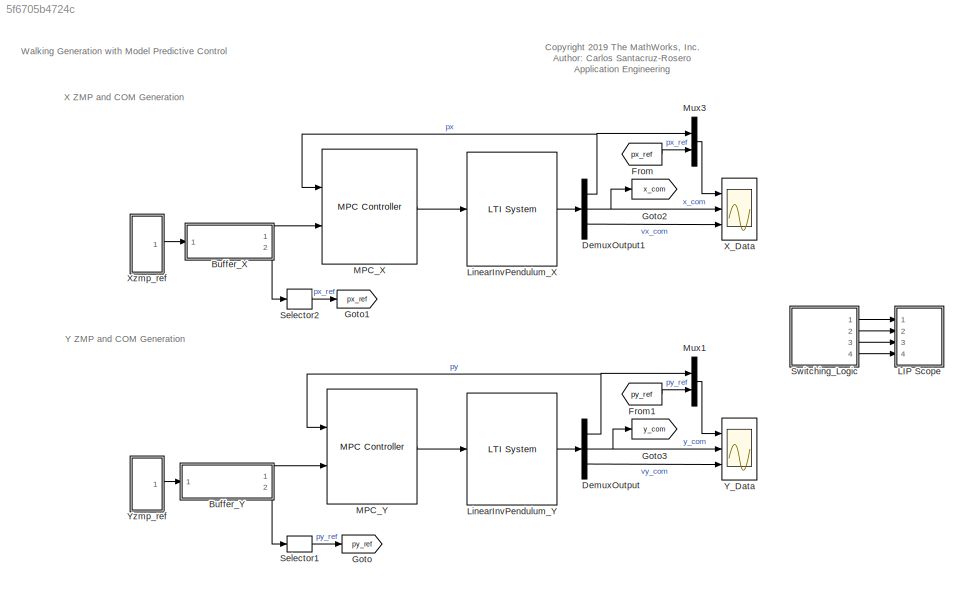
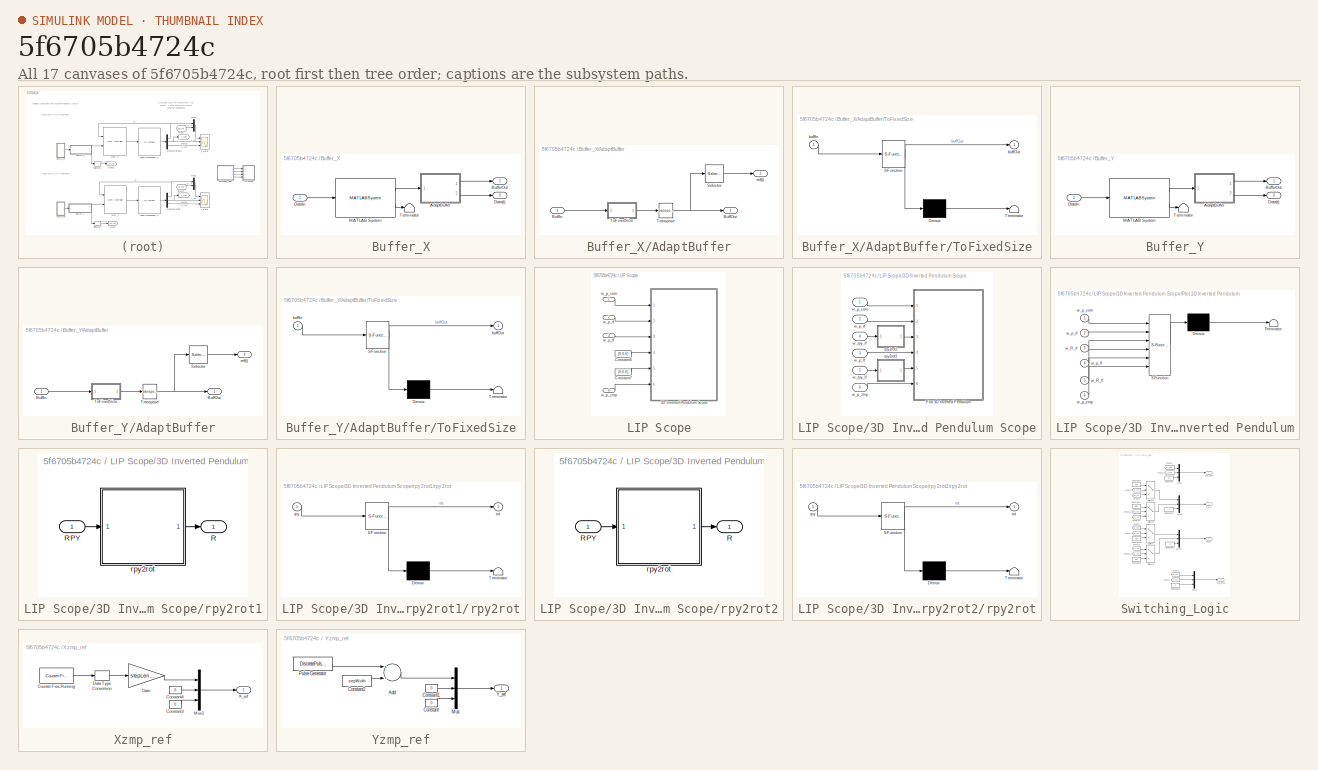
[diagram: thumbnail index - all 17 canvases of the model, root first then tree order]
MODEL slx_5f6705b4724c
KIND model
CONFIG AbsTol = auto
CONFIG EnableMultiTasking = off
CONFIG FixedStep = auto
CONFIG MaxStep = auto
CONFIG MinStep = auto
CONFIG RelTol = 1e-3
CONFIG SampleTimeConstraint = Unconstrained
CONFIG Solver = VariableStepAuto
CONFIG SolverName = VariableStepAuto
CONFIG StartTime = 0.0
CONFIG StopTime = 10.0
BLOCK [SubSystem] Buffer_X
  Ports = [1, 2]
  RequestExecContextInheritance = off
BLOCK [SubSystem] Buffer_X/AdaptBuffer
  Ports = [1, 2]
  RequestExecContextInheritance = off
BLOCK [Inport] Buffer_X/AdaptBuffer/BuffIn
  IconDisplay = Port number
BLOCK [Outport] Buffer_X/AdaptBuffer/BuffOut
  IconDisplay = Port number
BLOCK [Selector] Buffer_X/AdaptBuffer/Selector
  IndexOptions = Index vector (dialog),Select all
  Indices = [1],1
  InputPortWidth = 3
  NumberOfDimensions = 2
  OutputSizes = 1,1
  Ports = [1, 1]
BLOCK [SubSystem] Buffer_X/AdaptBuffer/ToFixedSize
  ErrorFcn = Stateflow.Translate.translate
  PermitHierarchicalResolution = ExplicitOnly
  Ports = [1, 1]
  RequestExecContextInheritance = off
  SFBlockType = MATLAB Function
  TreatAsAtomicUnit = on
BLOCK [Demux] Buffer_X/AdaptBuffer/ToFixedSize/ Demux 
  Outputs = 1
  Ports = [1, 1]
BLOCK [S-Function] Buffer_X/AdaptBuffer/ToFixedSize/ SFunction 
  EnableBusSupport = off
  FunctionName = sf_sfun
  Parameters = numStates,predictionHorizon
  PortCounts = [1 2]
  Ports = [1, 2]
  SFcnIsStateOwnerBlock = off
  SFunctionDeploymentMode = off
  Tag = Stateflow S-Function 1
BLOCK [Terminator] Buffer_X/AdaptBuffer/ToFixedSize/ Terminator 
BLOCK [Inport] Buffer_X/AdaptBuffer/ToFixedSize/buffIn
  IconDisplay = Port number
BLOCK [Outport] Buffer_X/AdaptBuffer/ToFixedSize/buffOut
  IconDisplay = Port number
BLOCK [Math] Buffer_X/AdaptBuffer/Transpose
  Operator = transpose
  Ports = [1, 1]
BLOCK [Outport] Buffer_X/AdaptBuffer/ref(t)
  IconDisplay = Port number
  Port = 2
BLOCK [Outport] Buffer_X/BufferOut
  IconDisplay = Port number
BLOCK [Outport] Buffer_X/Data(t)
  IconDisplay = Port number
  Port = 2
BLOCK [Inport] Buffer_X/DataIn
  IconDisplay = Port number
BLOCK [MATLABSystem] Buffer_X/MATLAB System
  BufferStartupFillupData = zeros(numOutputs,predictionHorizon)
  Capacity = predictionHorizon
  FillBufferAtStartup = on
  MaskDisplay = disp('FIFOBuffer');\nport_label('input',1,'dataIn');\nport_label('output',1,'buffer');\nport_label('output',2,'isFull');
  MaskType = FIFOBuffer
  NumStates = numOutputs
  Ports = [1, 2]
  SampleTime = Ts
  SimulateUsing = Code generation
  System = FIFOBuffer
BLOCK [Terminator] Buffer_X/Terminator
BLOCK [SubSystem] Buffer_Y
  Ports = [1, 2]
  RequestExecContextInheritance = off
BLOCK [SubSystem] Buffer_Y/AdaptBuffer
  Ports = [1, 2]
  RequestExecContextInheritance = off
BLOCK [Inport] Buffer_Y/AdaptBuffer/BuffIn
  IconDisplay = Port number
BLOCK [Outport] Buffer_Y/AdaptBuffer/BuffOut
  IconDisplay = Port number
BLOCK [Selector] Buffer_Y/AdaptBuffer/Selector
  IndexOptions = Index vector (dialog),Select all
  Indices = [1],1
  InputPortWidth = 3
  NumberOfDimensions = 2
  OutputSizes = 1,1
  Ports = [1, 1]
BLOCK [SubSystem] Buffer_Y/AdaptBuffer/ToFixedSize
  ErrorFcn = Stateflow.Translate.translate
  PermitHierarchicalResolution = ExplicitOnly
  Ports = [1, 1]
  RequestExecContextInheritance = off
  SFBlockType = MATLAB Function
  TreatAsAtomicUnit = on
BLOCK [Demux] Buffer_Y/AdaptBuffer/ToFixedSize/ Demux 
  Outputs = 1
  Ports = [1, 1]
BLOCK [S-Function] Buffer_Y/AdaptBuffer/ToFixedSize/ SFunction 
  EnableBusSupport = off
  FunctionName = sf_sfun
  Parameters = numStates,predictionHorizon
  PortCounts = [1 2]
  Ports = [1, 2]
  SFcnIsStateOwnerBlock = off
  SFunctionDeploymentMode = off
  Tag = Stateflow S-Function 2
BLOCK [Terminator] Buffer_Y/AdaptBuffer/ToFixedSize/ Terminator 
BLOCK [Inport] Buffer_Y/AdaptBuffer/ToFixedSize/buffIn
  IconDisplay = Port number
BLOCK [Outport] Buffer_Y/AdaptBuffer/ToFixedSize/buffOut
  IconDisplay = Port number
BLOCK [Math] Buffer_Y/AdaptBuffer/Transpose
  Operator = transpose
  Ports = [1, 1]
BLOCK [Outport] Buffer_Y/AdaptBuffer/ref(t)
  IconDisplay = Port number
  Port = 2
BLOCK [Outport] Buffer_Y/BufferOut
  IconDisplay = Port number
BLOCK [Outport] Buffer_Y/Data(t)
  IconDisplay = Port number
  Port = 2
BLOCK [Inport] Buffer_Y/DataIn
  IconDisplay = Port number
BLOCK [MATLABSystem] Buffer_Y/MATLAB System
  BufferStartupFillupData = zeros(numOutputs,predictionHorizon)
  Capacity = predictionHorizon
  FillBufferAtStartup = on
  MaskDisplay = disp('FIFOBuffer');\nport_label('input',1,'dataIn');\nport_label('output',1,'buffer');\nport_label('output',2,'isFull');
  MaskType = FIFOBuffer
  NumStates = numOutputs
  Ports = [1, 2]
  SampleTime = Ts
  SimulateUsing = Code generation
  System = FIFOBuffer
BLOCK [Terminator] Buffer_Y/Terminator
BLOCK [Demux] DemuxOutput
  DisplayOption = bar
  Outputs = 3
  Ports = [1, 3]
BLOCK [Demux] DemuxOutput1
  DisplayOption = bar
  Outputs = 3
  Ports = [1, 3]
BLOCK [From] From
  GotoTag = px_ref
  TagVisibility = global
BLOCK [From] From1
  GotoTag = py_ref
  TagVisibility = global
BLOCK [Goto] Goto
  GotoTag = py_ref
  TagVisibility = global
BLOCK [Goto] Goto1
  GotoTag = px_ref
  TagVisibility = global
BLOCK [Goto] Goto2
  GotoTag = x_com
  TagVisibility = global
BLOCK [Goto] Goto3
  GotoTag = y_com
  TagVisibility = global
BLOCK [SubSystem] LIP Scope
  Ports = [4]
  RequestExecContextInheritance = off
BLOCK [SubSystem] LIP Scope/3D Inverted Pendulum Scope
  Ports = [6]
  RequestExecContextInheritance = off
  TreatAsAtomicUnit = on
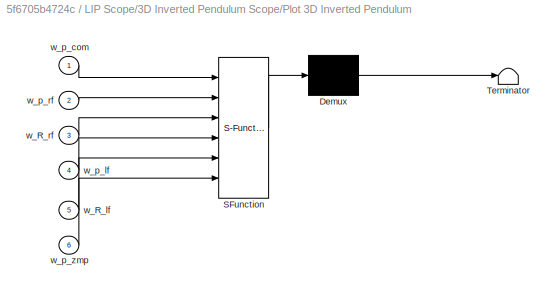
BLOCK [SubSystem] LIP Scope/3D Inverted Pendulum Scope/Plot 3D Inverted Pendulum
  ErrorFcn = Stateflow.Translate.translate
  PermitHierarchicalResolution = ExplicitOnly
  Ports = [6]
  RequestExecContextInheritance = off
  SFBlockType = MATLAB Function
  TreatAsAtomicUnit = on
BLOCK [Demux] LIP Scope/3D Inverted Pendulum Scope/Plot 3D Inverted Pendulum/ Demux 
  Outputs = 1
  Ports = [1, 1]
BLOCK [S-Function] LIP Scope/3D Inverted Pendulum Scope/Plot 3D Inverted Pendulum/ SFunction 
  EnableBusSupport = off
  FunctionName = sf_sfun
  Parameters = fl,fw,x_max,x_min,y_max,y_min,z_max,z_min
  PortCounts = [6 1]
  Ports = [6, 1]
  SFcnIsStateOwnerBlock = off
  SFunctionDeploymentMode = off
  Tag = Stateflow S-Function 9
BLOCK [Terminator] LIP Scope/3D Inverted Pendulum Scope/Plot 3D Inverted Pendulum/ Terminator 
BLOCK [Inport] LIP Scope/3D Inverted Pendulum Scope/Plot 3D Inverted Pendulum/w_R_lf
  IconDisplay = Port number
  Port = 5
BLOCK [Inport] LIP Scope/3D Inverted Pendulum Scope/Plot 3D Inverted Pendulum/w_R_rf
  IconDisplay = Port number
  Port = 3
BLOCK [Inport] LIP Scope/3D Inverted Pendulum Scope/Plot 3D Inverted Pendulum/w_p_com
  IconDisplay = Port number
BLOCK [Inport] LIP Scope/3D Inverted Pendulum Scope/Plot 3D Inverted Pendulum/w_p_lf
  IconDisplay = Port number
  Port = 4
BLOCK [Inport] LIP Scope/3D Inverted Pendulum Scope/Plot 3D Inverted Pendulum/w_p_rf
  IconDisplay = Port number
  Port = 2
BLOCK [Inport] LIP Scope/3D Inverted Pendulum Scope/Plot 3D Inverted Pendulum/w_p_zmp
  IconDisplay = Port number
  Port = 6
BLOCK [SubSystem] LIP Scope/3D Inverted Pendulum Scope/rpy2rot1
  Ports = [1, 1]
  RequestExecContextInheritance = off
BLOCK [Outport] LIP Scope/3D Inverted Pendulum Scope/rpy2rot1/R
  IconDisplay = Port number
BLOCK [Inport] LIP Scope/3D Inverted Pendulum Scope/rpy2rot1/RPY
  IconDisplay = Port number
BLOCK [SubSystem] LIP Scope/3D Inverted Pendulum Scope/rpy2rot1/rpy2rot
  ErrorFcn = Stateflow.Translate.translate
  PermitHierarchicalResolution = ExplicitOnly
  Ports = [1, 1]
  RequestExecContextInheritance = off
  SFBlockType = MATLAB Function
  TreatAsAtomicUnit = on
BLOCK [Demux] LIP Scope/3D Inverted Pendulum Scope/rpy2rot1/rpy2rot/ Demux 
  Outputs = 1
  Ports = [1, 1]
BLOCK [S-Function] LIP Scope/3D Inverted Pendulum Scope/rpy2rot1/rpy2rot/ SFunction 
  EnableBusSupport = off
  FunctionName = sf_sfun
  PortCounts = [1 2]
  Ports = [1, 2]
  SFcnIsStateOwnerBlock = off
  SFunctionDeploymentMode = off
  Tag = Stateflow S-Function 18
BLOCK [Terminator] LIP Scope/3D Inverted Pendulum Scope/rpy2rot1/rpy2rot/ Terminator 
BLOCK [Outport] LIP Scope/3D Inverted Pendulum Scope/rpy2rot1/rpy2rot/rot
  IconDisplay = Port number
BLOCK [Inport] LIP Scope/3D Inverted Pendulum Scope/rpy2rot1/rpy2rot/rpy
  IconDisplay = Port number
BLOCK [SubSystem] LIP Scope/3D Inverted Pendulum Scope/rpy2rot2
  Ports = [1, 1]
  RequestExecContextInheritance = off
BLOCK [Outport] LIP Scope/3D Inverted Pendulum Scope/rpy2rot2/R
  IconDisplay = Port number
BLOCK [Inport] LIP Scope/3D Inverted Pendulum Scope/rpy2rot2/RPY
  IconDisplay = Port number
BLOCK [SubSystem] LIP Scope/3D Inverted Pendulum Scope/rpy2rot2/rpy2rot
  ErrorFcn = Stateflow.Translate.translate
  PermitHierarchicalResolution = ExplicitOnly
  Ports = [1, 1]
  RequestExecContextInheritance = off
  SFBlockType = MATLAB Function
  TreatAsAtomicUnit = on
BLOCK [Demux] LIP Scope/3D Inverted Pendulum Scope/rpy2rot2/rpy2rot/ Demux 
  Outputs = 1
  Ports = [1, 1]
BLOCK [S-Function] LIP Scope/3D Inverted Pendulum Scope/rpy2rot2/rpy2rot/ SFunction 
  EnableBusSupport = off
  FunctionName = sf_sfun
  PortCounts = [1 2]
  Ports = [1, 2]
  SFcnIsStateOwnerBlock = off
  SFunctionDeploymentMode = off
  Tag = Stateflow S-Function 4
BLOCK [Terminator] LIP Scope/3D Inverted Pendulum Scope/rpy2rot2/rpy2rot/ Terminator 
BLOCK [Outport] LIP Scope/3D Inverted Pendulum Scope/rpy2rot2/rpy2rot/rot
  IconDisplay = Port number
BLOCK [Inport] LIP Scope/3D Inverted Pendulum Scope/rpy2rot2/rpy2rot/rpy
  IconDisplay = Port number
BLOCK [Inport] LIP Scope/3D Inverted Pendulum Scope/w_p_com
  IconDisplay = Port number
BLOCK [Inport] LIP Scope/3D Inverted Pendulum Scope/w_p_lf
  IconDisplay = Port number
  Port = 3
BLOCK [Inport] LIP Scope/3D Inverted Pendulum Scope/w_p_rf
  IconDisplay = Port number
  Port = 2
BLOCK [Inport] LIP Scope/3D Inverted Pendulum Scope/w_p_zmp
  IconDisplay = Port number
  Port = 6
BLOCK [Inport] LIP Scope/3D Inverted Pendulum Scope/w_rpy_lf
  IconDisplay = Port number
  Port = 5
BLOCK [Inport] LIP Scope/3D Inverted Pendulum Scope/w_rpy_rf
  IconDisplay = Port number
  Port = 4
BLOCK [Constant] LIP Scope/Constant6
  Value = [0;0;0]
BLOCK [Constant] LIP Scope/Constant7
  Value = [0;0;0]
BLOCK [Inport] LIP Scope/w_p_com
  IconDisplay = Port number
BLOCK [Inport] LIP Scope/w_p_lf
  IconDisplay = Port number
  Port = 3
BLOCK [Inport] LIP Scope/w_p_rf
  IconDisplay = Port number
  Port = 2
BLOCK [Inport] LIP Scope/w_p_zmp
  IconDisplay = Port number
  Port = 4
BLOCK [Reference] LinearInvPendulum_X  REF=cstblocks/LTI System
  Ports = [1, 1]
  SourceBlock = cstblocks/LTI System
  SourceProductBaseCode = CT
  SourceProductName = Control System Toolbox
  SourceType = LTI Block
BLOCK [Reference] LinearInvPendulum_Y  REF=cstblocks/LTI System
  Ports = [1, 1]
  SourceBlock = cstblocks/LTI System
  SourceProductBaseCode = CT
  SourceProductName = Control System Toolbox
  SourceType = LTI Block
BLOCK [Reference] MPC_X  REF=mpclib/MPC Controller  (lib defined in mdl_ae329e0e0455)
  Ports = [2, 1]
  SCDEnableBlockLinearizationSpecification = on
  SourceBlock = mpclib/MPC Controller
  SourceProductBaseCode = MP
  SourceProductName = Model Predictive Control Toolbox
  SourceType = MPC
BLOCK [Reference] MPC_Y  REF=mpclib/MPC Controller  (lib defined in mdl_ae329e0e0455)
  Ports = [2, 1]
  SCDEnableBlockLinearizationSpecification = on
  SourceBlock = mpclib/MPC Controller
  SourceProductBaseCode = MP
  SourceProductName = Model Predictive Control Toolbox
  SourceType = MPC
BLOCK [Mux] Mux1
  DisplayOption = bar
  Inputs = 2
  Ports = [2, 1]
BLOCK [Mux] Mux3
  DisplayOption = bar
  Inputs = 2
  Ports = [2, 1]
BLOCK [Selector] Selector1
  IndexOptions = Index vector (dialog)
  Indices = [1]
  InputPortWidth = 3
  OutputSizes = 1
  Ports = [1, 1]
BLOCK [Selector] Selector2
  IndexOptions = Index vector (dialog)
  Indices = [1]
  InputPortWidth = 3
  OutputSizes = 1
  Ports = [1, 1]
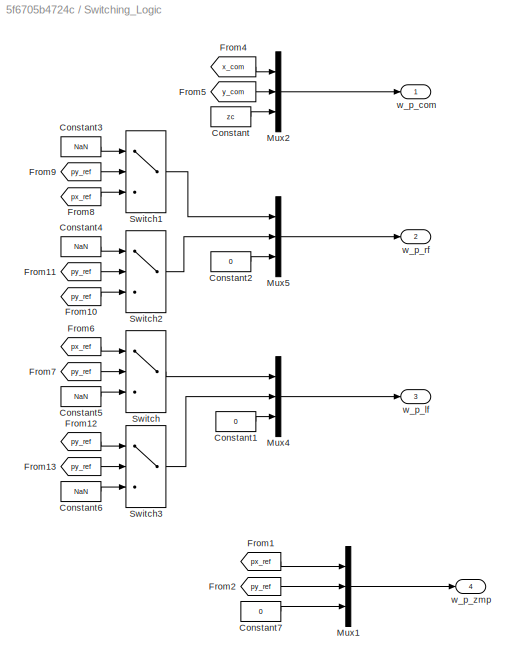
BLOCK [SubSystem] Switching_Logic
  Ports = [0, 4]
  RequestExecContextInheritance = off
BLOCK [Constant] Switching_Logic/Constant
  Value = zc
BLOCK [Constant] Switching_Logic/Constant1
  Value = 0
BLOCK [Constant] Switching_Logic/Constant2
  Value = 0
BLOCK [Constant] Switching_Logic/Constant3
  Value = NaN
BLOCK [Constant] Switching_Logic/Constant4
  Value = NaN
BLOCK [Constant] Switching_Logic/Constant5
  Value = NaN
BLOCK [Constant] Switching_Logic/Constant6
  Value = NaN
BLOCK [Constant] Switching_Logic/Constant7
  Value = 0
BLOCK [From] Switching_Logic/From1
  GotoTag = px_ref
  TagVisibility = global
BLOCK [From] Switching_Logic/From10
  GotoTag = py_ref
  TagVisibility = global
BLOCK [From] Switching_Logic/From11
  GotoTag = py_ref
  TagVisibility = global
BLOCK [From] Switching_Logic/From12
  GotoTag = py_ref
  TagVisibility = global
BLOCK [From] Switching_Logic/From13
  GotoTag = py_ref
  TagVisibility = global
BLOCK [From] Switching_Logic/From2
  GotoTag = py_ref
  TagVisibility = global
BLOCK [From] Switching_Logic/From4
  GotoTag = x_com
  TagVisibility = global
BLOCK [From] Switching_Logic/From5
  GotoTag = y_com
  TagVisibility = global
BLOCK [From] Switching_Logic/From6
  GotoTag = px_ref
  TagVisibility = global
BLOCK [From] Switching_Logic/From7
  GotoTag = py_ref
  TagVisibility = global
BLOCK [From] Switching_Logic/From8
  GotoTag = px_ref
  TagVisibility = global
BLOCK [From] Switching_Logic/From9
  GotoTag = py_ref
  TagVisibility = global
BLOCK [Mux] Switching_Logic/Mux1
  DisplayOption = bar
  Inputs = 3
  Ports = [3, 1]
BLOCK [Mux] Switching_Logic/Mux2
  DisplayOption = bar
  Inputs = 3
  Ports = [3, 1]
BLOCK [Mux] Switching_Logic/Mux4
  DisplayOption = bar
  Inputs = 3
  Ports = [3, 1]
BLOCK [Mux] Switching_Logic/Mux5
  DisplayOption = bar
  Inputs = 3
  Ports = [3, 1]
BLOCK [Switch] Switching_Logic/Switch
  Criteria = u2 > Threshold
  InputSameDT = off
  SaturateOnIntegerOverflow = off
BLOCK [Switch] Switching_Logic/Switch1
  Criteria = u2 > Threshold
  InputSameDT = off
  SaturateOnIntegerOverflow = off
BLOCK [Switch] Switching_Logic/Switch2
  Criteria = u2 > Threshold
  InputSameDT = off
  SaturateOnIntegerOverflow = off
BLOCK [Switch] Switching_Logic/Switch3
  Criteria = u2 > Threshold
  InputSameDT = off
  SaturateOnIntegerOverflow = off
BLOCK [Outport] Switching_Logic/w_p_com
  IconDisplay = Port number
BLOCK [Outport] Switching_Logic/w_p_lf
  IconDisplay = Port number
  Port = 3
BLOCK [Outport] Switching_Logic/w_p_rf
  IconDisplay = Port number
  Port = 2
BLOCK [Outport] Switching_Logic/w_p_zmp
  IconDisplay = Port number
  Port = 4
BLOCK [Scope] X_Data
  Floating = off
  NumInputPorts = 3
  Ports = [3]
  ScopeSpecificationString = Simulink.scopes.TimeScopeBlockCfg('CurrentConfiguration', extmgr.ConfigurationSet(extmgr.Configuration('Core','General UI',true),extmgr.Configuration('Core','Source UI',true),extmgr.Configuration('Sources','WiredSimulink',true,'DataLoggingVariableName','ScopeData2'),extmgr.Configuration('Visuals','Time Domain',true,'SerializedDisplays',{struct('MinYLimReal','-0.19515','MaxYLimReal','1.68947','YLab...<+2724ch>
BLOCK [SubSystem] Xzmp_ref
  Ports = [0, 1]
  RequestExecContextInheritance = off
BLOCK [Constant] Xzmp_ref/Constant3
  SampleTime = Ts
  Value = 0
BLOCK [Constant] Xzmp_ref/Constant4
  SampleTime = Ts
  Value = 0
BLOCK [Reference] Xzmp_ref/Counter Free-Running  REF=simulink/Sources/Counter
Free-Running
  Ports = [0, 1]
  SourceBlock = simulink/Sources/Counter\nFree-Running
  SourceProductBaseCode = SL
  SourceProductName = Simulink
  SourceType = Counter Free-Running
BLOCK [DataTypeConversion] Xzmp_ref/Data Type Conversion
  OutDataTypeStr = double
  RndMeth = Floor
  SaturateOnIntegerOverflow = off
BLOCK [Gain] Xzmp_ref/Gain
  Gain = stepLength
  OutDataTypeStr = Inherit: Inherit via internal rule
  ParamDataTypeStr = Inherit: Inherit via internal rule
  SaturateOnIntegerOverflow = off
BLOCK [Mux] Xzmp_ref/Mux2
  DisplayOption = bar
  Inputs = 3
  Ports = [3, 1]
BLOCK [Outport] Xzmp_ref/X_ref
  IconDisplay = Port number
BLOCK [Scope] Y_Data
  Floating = off
  NumInputPorts = 3
  Ports = [3]
  ScopeSpecificationString = Simulink.scopes.TimeScopeBlockCfg('CurrentConfiguration', extmgr.ConfigurationSet(extmgr.Configuration('Core','General UI',true),extmgr.Configuration('Core','Source UI',true),extmgr.Configuration('Sources','WiredSimulink',true,'DataLoggingVariableName','ScopeData1'),extmgr.Configuration('Visuals','Time Domain',true,'SerializedDisplays',{struct('MinYLimReal','-0.19515','MaxYLimReal','1.68947','YLab...<+2724ch>
BLOCK [SubSystem] Yzmp_ref
  Ports = [0, 1]
  RequestExecContextInheritance = off
BLOCK [Sum] Yzmp_ref/Add
  InputSameDT = off
  Inputs = +-
  OutDataTypeStr = Inherit: Inherit via internal rule
  Ports = [2, 1]
  SaturateOnIntegerOverflow = off
BLOCK [Constant] Yzmp_ref/Constant
  SampleTime = Ts
  Value = 0
BLOCK [Constant] Yzmp_ref/Constant1
  SampleTime = Ts
  Value = 0
BLOCK [Constant] Yzmp_ref/Constant2
  SampleTime = Ts
  Value = stepWidth
BLOCK [Mux] Yzmp_ref/Mux
  DisplayOption = bar
  Inputs = 3
  Ports = [3, 1]
BLOCK [DiscretePulseGenerator] Yzmp_ref/Pulse Generator
  Amplitude = 2*stepWidth
  Period = 2*stepTime
  Ports = [0, 1]
  PulseType = Time based
  PulseWidth = 50
BLOCK [Outport] Yzmp_ref/Y_ref
  IconDisplay = Port number
ANNOTATION (root): Walking Generation with Model Predictive Control
ANNOTATION (root): <copyright redacted>
ANNOTATION (root): X ZMP and COM Generation
ANNOTATION (root): Y ZMP and COM Generation
LINE Buffer_X/AdaptBuffer/BuffIn:1 -> Buffer_X/AdaptBuffer/ToFixedSize:1
LINE Buffer_X/AdaptBuffer/Selector:1 -> Buffer_X/AdaptBuffer/ref(t):1
LINE Buffer_X/AdaptBuffer/ToFixedSize:1 -> Buffer_X/AdaptBuffer/Transpose:1
NET Buffer_X/AdaptBuffer/Transpose:1 -> Buffer_X/AdaptBuffer/BuffOut:1, Buffer_X/AdaptBuffer/Selector:1
LINE Buffer_X/AdaptBuffer:1 -> Buffer_X/BufferOut:1
LINE Buffer_X/AdaptBuffer:2 -> Buffer_X/Data(t):1
LINE Buffer_X/DataIn:1 -> Buffer_X/MATLAB System:1
LINE Buffer_X/MATLAB System:1 -> Buffer_X/AdaptBuffer:1
LINE Buffer_X/MATLAB System:2 -> Buffer_X/Terminator:1
LINE Buffer_X:1 -> MPC_X:2
LINE Buffer_X:2 -> Selector2:1
LINE Buffer_Y/AdaptBuffer/BuffIn:1 -> Buffer_Y/AdaptBuffer/ToFixedSize:1
LINE Buffer_Y/AdaptBuffer/Selector:1 -> Buffer_Y/AdaptBuffer/ref(t):1
LINE Buffer_Y/AdaptBuffer/ToFixedSize:1 -> Buffer_Y/AdaptBuffer/Transpose:1
NET Buffer_Y/AdaptBuffer/Transpose:1 -> Buffer_Y/AdaptBuffer/BuffOut:1, Buffer_Y/AdaptBuffer/Selector:1
LINE Buffer_Y/AdaptBuffer:1 -> Buffer_Y/BufferOut:1
LINE Buffer_Y/AdaptBuffer:2 -> Buffer_Y/Data(t):1
LINE Buffer_Y/DataIn:1 -> Buffer_Y/MATLAB System:1
LINE Buffer_Y/MATLAB System:1 -> Buffer_Y/AdaptBuffer:1
LINE Buffer_Y/MATLAB System:2 -> Buffer_Y/Terminator:1
LINE Buffer_Y:1 -> MPC_Y:2
LINE Buffer_Y:2 -> Selector1:1
NET DemuxOutput1:1 -> MPC_X:1, Mux3:1
NET DemuxOutput1:2 -> Goto2:1, X_Data:2
LINE DemuxOutput1:3 -> X_Data:3
NET DemuxOutput:1 -> MPC_Y:1, Mux1:1
NET DemuxOutput:2 -> Goto3:1, Y_Data:2
LINE DemuxOutput:3 -> Y_Data:3
LINE From1:1 -> Mux1:2
LINE From:1 -> Mux3:2
LINE LIP Scope/3D Inverted Pendulum Scope/rpy2rot1/RPY:1 -> LIP Scope/3D Inverted Pendulum Scope/rpy2rot1/rpy2rot:1
LINE LIP Scope/3D Inverted Pendulum Scope/rpy2rot1/rpy2rot:1 -> LIP Scope/3D Inverted Pendulum Scope/rpy2rot1/R:1
LINE LIP Scope/3D Inverted Pendulum Scope/rpy2rot1:1 -> LIP Scope/3D Inverted Pendulum Scope/Plot 3D Inverted Pendulum:5
LINE LIP Scope/3D Inverted Pendulum Scope/rpy2rot2/RPY:1 -> LIP Scope/3D Inverted Pendulum Scope/rpy2rot2/rpy2rot:1
LINE LIP Scope/3D Inverted Pendulum Scope/rpy2rot2/rpy2rot:1 -> LIP Scope/3D Inverted Pendulum Scope/rpy2rot2/R:1
LINE LIP Scope/3D Inverted Pendulum Scope/rpy2rot2:1 -> LIP Scope/3D Inverted Pendulum Scope/Plot 3D Inverted Pendulum:3
LINE LIP Scope/3D Inverted Pendulum Scope/w_p_com:1 -> LIP Scope/3D Inverted Pendulum Scope/Plot 3D Inverted Pendulum:1
LINE LIP Scope/3D Inverted Pendulum Scope/w_p_lf:1 -> LIP Scope/3D Inverted Pendulum Scope/Plot 3D Inverted Pendulum:4
LINE LIP Scope/3D Inverted Pendulum Scope/w_p_rf:1 -> LIP Scope/3D Inverted Pendulum Scope/Plot 3D Inverted Pendulum:2
LINE LIP Scope/3D Inverted Pendulum Scope/w_p_zmp:1 -> LIP Scope/3D Inverted Pendulum Scope/Plot 3D Inverted Pendulum:6
LINE LIP Scope/3D Inverted Pendulum Scope/w_rpy_lf:1 -> LIP Scope/3D Inverted Pendulum Scope/rpy2rot1:1
LINE LIP Scope/3D Inverted Pendulum Scope/w_rpy_rf:1 -> LIP Scope/3D Inverted Pendulum Scope/rpy2rot2:1
LINE LIP Scope/Constant6:1 -> LIP Scope/3D Inverted Pendulum Scope:4
LINE LIP Scope/Constant7:1 -> LIP Scope/3D Inverted Pendulum Scope:5
LINE LIP Scope/w_p_com:1 -> LIP Scope/3D Inverted Pendulum Scope:1
LINE LIP Scope/w_p_lf:1 -> LIP Scope/3D Inverted Pendulum Scope:3
LINE LIP Scope/w_p_rf:1 -> LIP Scope/3D Inverted Pendulum Scope:2
LINE LIP Scope/w_p_zmp:1 -> LIP Scope/3D Inverted Pendulum Scope:6
LINE LinearInvPendulum_X:1 -> DemuxOutput1:1
LINE LinearInvPendulum_Y:1 -> DemuxOutput:1
LINE MPC_X:1 -> LinearInvPendulum_X:1
LINE MPC_Y:1 -> LinearInvPendulum_Y:1
LINE Mux1:1 -> Y_Data:1
LINE Mux3:1 -> X_Data:1
LINE Selector1:1 -> Goto:1
LINE Selector2:1 -> Goto1:1
LINE Switching_Logic/Constant1:1 -> Switching_Logic/Mux4:3
LINE Switching_Logic/Constant2:1 -> Switching_Logic/Mux5:3
LINE Switching_Logic/Constant3:1 -> Switching_Logic/Switch1:1
LINE Switching_Logic/Constant4:1 -> Switching_Logic/Switch2:1
LINE Switching_Logic/Constant5:1 -> Switching_Logic/Switch:3
LINE Switching_Logic/Constant6:1 -> Switching_Logic/Switch3:3
LINE Switching_Logic/Constant7:1 -> Switching_Logic/Mux1:3
LINE Switching_Logic/Constant:1 -> Switching_Logic/Mux2:3
LINE Switching_Logic/From10:1 -> Switching_Logic/Switch2:3
LINE Switching_Logic/From11:1 -> Switching_Logic/Switch2:2
LINE Switching_Logic/From12:1 -> Switching_Logic/Switch3:1
LINE Switching_Logic/From13:1 -> Switching_Logic/Switch3:2
LINE Switching_Logic/From1:1 -> Switching_Logic/Mux1:1
LINE Switching_Logic/From2:1 -> Switching_Logic/Mux1:2
LINE Switching_Logic/From4:1 -> Switching_Logic/Mux2:1
LINE Switching_Logic/From5:1 -> Switching_Logic/Mux2:2
LINE Switching_Logic/From6:1 -> Switching_Logic/Switch:1
LINE Switching_Logic/From7:1 -> Switching_Logic/Switch:2
LINE Switching_Logic/From8:1 -> Switching_Logic/Switch1:3
LINE Switching_Logic/From9:1 -> Switching_Logic/Switch1:2
LINE Switching_Logic/Mux1:1 -> Switching_Logic/w_p_zmp:1
LINE Switching_Logic/Mux2:1 -> Switching_Logic/w_p_com:1
LINE Switching_Logic/Mux4:1 -> Switching_Logic/w_p_lf:1
LINE Switching_Logic/Mux5:1 -> Switching_Logic/w_p_rf:1
LINE Switching_Logic/Switch1:1 -> Switching_Logic/Mux5:1
LINE Switching_Logic/Switch2:1 -> Switching_Logic/Mux5:2
LINE Switching_Logic/Switch3:1 -> Switching_Logic/Mux4:2
LINE Switching_Logic/Switch:1 -> Switching_Logic/Mux4:1
LINE Switching_Logic:1 -> LIP Scope:1
LINE Switching_Logic:2 -> LIP Scope:2
LINE Switching_Logic:3 -> LIP Scope:3
LINE Switching_Logic:4 -> LIP Scope:4
LINE Xzmp_ref/Constant3:1 -> Xzmp_ref/Mux2:3
LINE Xzmp_ref/Constant4:1 -> Xzmp_ref/Mux2:2
LINE Xzmp_ref/Counter Free-Running:1 -> Xzmp_ref/Data Type Conversion:1
LINE Xzmp_ref/Data Type Conversion:1 -> Xzmp_ref/Gain:1
LINE Xzmp_ref/Gain:1 -> Xzmp_ref/Mux2:1
LINE Xzmp_ref/Mux2:1 -> Xzmp_ref/X_ref:1
LINE Xzmp_ref:1 -> Buffer_X:1
LINE Yzmp_ref/Add:1 -> Yzmp_ref/Mux:1
LINE Yzmp_ref/Constant1:1 -> Yzmp_ref/Mux:2
LINE Yzmp_ref/Constant2:1 -> Yzmp_ref/Add:2
LINE Yzmp_ref/Constant:1 -> Yzmp_ref/Mux:3
LINE Yzmp_ref/Mux:1 -> Yzmp_ref/Y_ref:1
LINE Yzmp_ref/Pulse Generator:1 -> Yzmp_ref/Add:1
LINE Yzmp_ref:1 -> Buffer_Y:1
note: NET lines group one-source signal fan-out (src -> all destinations, sorted); 1:1 wires keep LINE
CHART Buffer_X/AdaptBuffer/ToFixedSize states=1 transitions=1
  STATE_LABEL 'eML_blk_kernel()'
  STATE_LABEL 'SCRIPT:\nfunction buffOut = fcn(buffIn,predictionHorizon, numStates)\n\nbuffOut = buffIn(1:numStates,1:predictionHorizon);\n'
CHART Buffer_Y/AdaptBuffer/ToFixedSize states=1 transitions=1
  STATE_LABEL 'eML_blk_kernel()'
  STATE_LABEL 'SCRIPT:\nfunction buffOut = fcn(buffIn,predictionHorizon, numStates)\n\nbuffOut = buffIn(1:numStates,1:predictionHorizon);\n'
CHART LIP Scope/3D Inverted Pendulum Scope/rpy2rot2/rpy2rot states=1 transitions=1
  STATE_LABEL 'eML_blk_kernel()'
  STATE_LABEL 'SCRIPT:\nfunction rot = rpy2rot(rpy)\n%#codegen\n%%RPY2ROT Transforms from RPY angles to rotation matrix\n% rpy is a vector of three RPY angles\n% rot is a rotation matrix of 3x3\nrot = zeros(3,3);\nx = rpy(1);\ny = rpy(2);\nz = rpy(3);\n\nca = cos(x); sa = sin(x);\ncb = cos(y); sb = sin(y);\ncc = cos(z); sc = sin(z);\n\n\nrot(1,1) = cb*cc;\nrot(1,2) = sa*sb*cc - ca*sc;\nrot(1,3) = ca*sb*cc + sa*sc;\nrot(2,1) = cb*s...<+113ch>'
CHART LIP Scope/3D Inverted Pendulum Scope/Plot 3D Inverted Pendulum states=1 transitions=1
  STATE_LABEL 'eML_blk_kernel()'
  STATE_LABEL 'SCRIPT:\nfunction drawPendulum(w_p_com, w_p_rf, w_R_rf,  w_p_lf, w_R_lf, w_p_zmp, ... \n                      x_min, x_max, y_min, y_max, z_min, z_max, ...\n                      fl, fw)  \n\npersistent init;\npersistent hrf;\npersistent hlf;\npersistent hcom;\npersistent hcomTrace;\npersistent hzmpTrace;\npersistent comBuff;\npersistent zmpBuff;\npersistent counter;\npersistent hsphere;\npersistent p;\npersisten...<+3608ch>'
CHART LIP Scope/3D Inverted Pendulum Scope/rpy2rot1/rpy2rot states=1 transitions=1
  STATE_LABEL 'eML_blk_kernel()'
  STATE_LABEL 'SCRIPT:\nfunction rot = rpy2rot(rpy)\n%#codegen\n%%RPY2ROT Transforms from RPY angles to rotation matrix\n% rpy is a vector of three RPY angles\n% rot is a rotation matrix of 3x3\nrot = zeros(3,3);\nx = rpy(1);\ny = rpy(2);\nz = rpy(3);\n\nca = cos(x); sa = sin(x);\ncb = cos(y); sb = sin(y);\ncc = cos(z); sc = sin(z);\n\n\nrot(1,1) = cb*cc;\nrot(1,2) = sa*sb*cc - ca*sc;\nrot(1,3) = ca*sb*cc + sa*sc;\nrot(2,1) = cb*s...<+113ch>'
